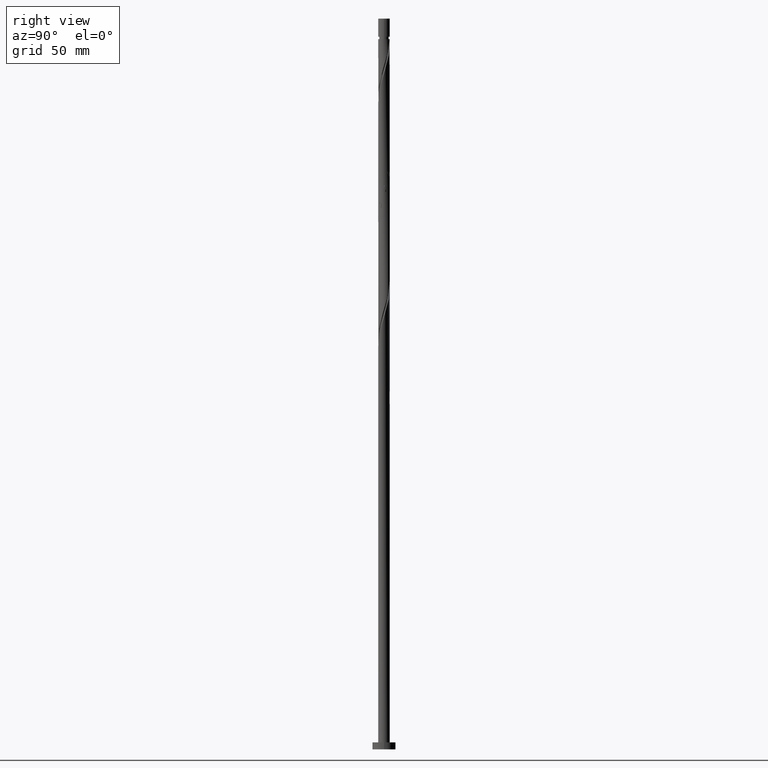
[diagram: clean part render]
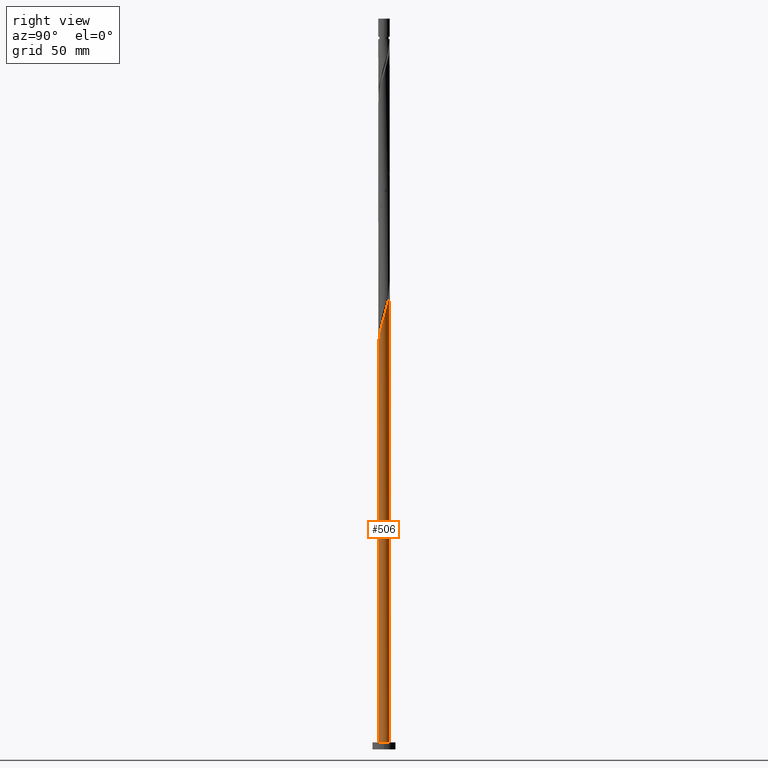
[diagram: same view with one face highlighted and labeled with its STEP entity id]
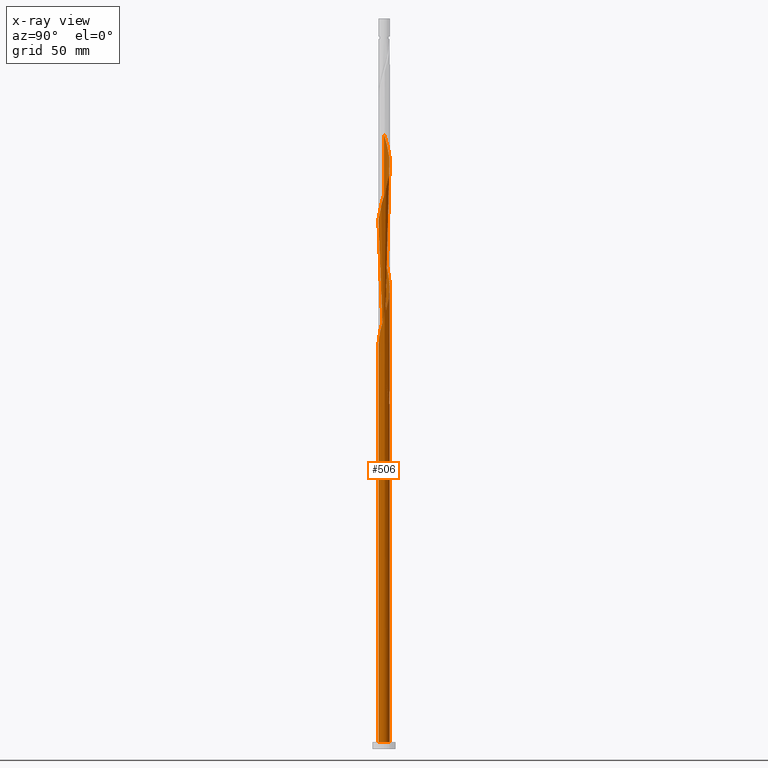
[diagram: x-ray of the same camera — body ghosted, the highlighted face saturated]
A machine part, right view. The second image highlights one B-rep face of the part: STEP entity #506.
The next image is the same camera in x-ray: the body ghosted, the highlighted face saturated — about 0% of this face is hidden behind the body in this view.
In plain terms, the highlighted cylindrical surface (bore or boss wall) has radius 2.5 mm, axis along (-0, -0, -1).
Its self-contained STEP definition (entity closure, byte-faithful):
#4 = CARTESIAN_POINT ( 'NONE',  ( -0.4974937185533118145, 2.450000000000002842, 148.6911807717714282 ) ) ;
#9 = CARTESIAN_POINT ( 'NONE',  ( 0.4974937185533120365, -2.450000000000002842, 227.4411807717713998 ) ) ;
#16 = CARTESIAN_POINT ( 'NONE',  ( 1.735631846680260049, -1.821243267372627983, 232.1286807717714566 ) ) ;
#18 = AXIS2_PLACEMENT_3D ( 'NONE', #887, #605, #1440 ) ;
#26 = CYLINDRICAL_SURFACE ( 'NONE', #287, 2.500000000000000000 ) ;
#29 = CARTESIAN_POINT ( 'NONE',  ( 0.7735424213085847489, -2.393945920148762507, 228.3786807717714282 ) ) ;
#40 = CARTESIAN_POINT ( 'NONE',  ( -1.286851179782862342, 2.161795315762413239, 256.5036807717714282 ) ) ;
#61 = CARTESIAN_POINT ( 'NONE',  ( -2.277870617955586763, -1.030196800545723379, 163.6911807717714851 ) ) ;
#78 = CARTESIAN_POINT ( 'NONE',  ( -2.423228161154338700, 0.6147888084444761425, 158.0661807717713998 ) ) ;
#95 = CARTESIAN_POINT ( 'NONE',  ( -2.499999999999999112, 2.033636642307902766E-15, 163.4906978496774173 ) ) ;
#105 =( BOUNDED_CURVE ( )  B_SPLINE_CURVE ( 2, ( #1064, #797, #1740, #932, #237, #912, #497, #350, #198, #778, #78, #761, #788, #370, #1191 ),
 .UNSPECIFIED., .F., .T. ) 
 B_SPLINE_CURVE_WITH_KNOTS ( ( 3, 2, 2, 2, 2, 2, 2, 3 ),
 ( 0.000000000000000000, 0.008928571428571396851, 0.01785714285714290472, 0.02678571428571430157, 0.03571428571428569843, 0.04464285714285709528, 0.05357142857142860315, 0.05453034012992200724 ),
 .UNSPECIFIED. ) 
 CURVE ( )  GEOMETRIC_REPRESENTATION_ITEM ( )  RATIONAL_B_SPLINE_CURVE ( ( 0.9090909090909563561, 0.9033747362666310066, 0.9090909090909563561, 0.9033747362666310066, 0.9090909090909563561, 0.9033747362666310066, 0.9090909090909563561, 0.9033747362666310066, 0.9090909090909563561, 0.9033747362666310066, 0.9090909090909563561, 0.9033747362666310066, 0.9090909090909563561, 0.9084770030214981418, 0.9079949616362265052 ) ) 
 REPRESENTATION_ITEM ( '' )  );
#107 = CARTESIAN_POINT ( 'NONE',  ( 2.353958098689213685, -0.8878210494104759043, 183.3786807717714282 ) ) ;
#119 = CARTESIAN_POINT ( 'NONE',  ( -0.7735424213085849710, 2.393945920148762507, 202.1286807717715135 ) ) ;
#126 = CARTESIAN_POINT ( 'NONE',  ( -1.286851179782862342, 2.161795315762413239, 204.0036807717714851 ) ) ;
#134 = CARTESIAN_POINT ( 'NONE',  ( -1.605304872039906572, -1.916506266048967788, 219.9411807717713998 ) ) ;
#144 = CARTESIAN_POINT ( 'NONE',  ( -0.06015577584021847279, -2.499276151735354112, 225.5661807717713998 ) ) ;
#150 = CARTESIAN_POINT ( 'NONE',  ( 2.225669392053443829, -1.138593763058830532, 234.9411807717714282 ) ) ;
#155 = CARTESIAN_POINT ( 'NONE',  ( 1.605304872039906572, 1.916506266048967344, 246.1911807717713430 ) ) ;
#174 = DIRECTION ( 'NONE',  ( -0.000000000000000000, -0.000000000000000000, -1.000000000000000000 ) ) ;
#185 = CARTESIAN_POINT ( 'NONE',  ( 2.450000000000002842, 0.4974937185533119255, 240.5661807717713998 ) ) ;
#198 = CARTESIAN_POINT ( 'NONE',  ( -2.225669392053443829, 1.138593763058830310, 156.1911807717714282 ) ) ;
#213 = CARTESIAN_POINT ( 'NONE',  ( -0.3417565674784757701, 2.492498223619459718, 151.5036807717714282 ) ) ;
#222 = CARTESIAN_POINT ( 'NONE',  ( -0.6147888084444745882, 2.423228161154335147, 152.4411807717713998 ) ) ;
#235 =( BOUNDED_CURVE ( )  B_SPLINE_CURVE ( 2, ( #922, #1476, #1341, #1759, #61, #1173, #489, #670, #969, #392, #703, #253, #1508, #1635, #1081, #1655, #812, #1218, #272, #1089, #1231, #1663, #956, #939, #1498, #107, #690, #1803, #278, #402, #562, #1668, #412, #1787, #536, #243, #1517, #264, #524, #1526, #555, #1098, #1392, #821, #1256, #119, #1377, #126, #1647, #698, #1105, #683, #422, #1240, #963, #948, #1368, #804, #1796, #546, #835, #829, #1385, #1073, #134, #1249, #1358, #428, #1775, #1531, #144, #1400, #9, #29, #592, #1714, #1260, #16, #737, #1138, #150, #851, #978, #447, #289, #1439, #185, #582, #470, #1567, #1128, #1417, #155, #1112, #1692, #297, #748, #573, #995, #1119, #458, #709, #1683, #40, #1290, #1703, #441, #1006, #1556, #316, #1020, #604, #714, #1266, #1676 ),
 .UNSPECIFIED., .F., .T. ) 
 B_SPLINE_CURVE_WITH_KNOTS ( ( 3, 2, 2, 2, 2, 2, 2, 2, 2, 2, 2, 2, 2, 2, 2, 2, 2, 2, 2, 2, 2, 2, 2, 2, 2, 2, 2, 2, 2, 2, 2, 2, 2, 2, 2, 2, 2, 2, 2, 2, 2, 2, 2, 2, 2, 2, 2, 2, 2, 2, 2, 2, 2, 2, 2, 2, 2, 3 ),
 ( 0.05453034012992200724, 0.06250000000000000000, 0.07142857142857139685, 0.08035714285714290472, 0.08928571428571430157, 0.09821428571428569843, 0.1071428571428570953, 0.1160714285714286031, 0.1250000000000000000, 0.1339285714285713969, 0.1428571428571429047, 0.1517857142857143016, 0.1607142857142856984, 0.1696428571428570953, 0.1785714285714286031, 0.1875000000000000000, 0.1964285714285713969, 0.2053571428571429047, 0.2142857142857143016, 0.2232142857142856984, 0.2321428571428570953, 0.2410714285714286031, 0.2500000000000000000, 0.2589285714285713969, 0.2678571428571429047, 0.2767857142857143016, 0.2857142857142856984, 0.2946428571428570953, 0.3035714285714286031, 0.3125000000000000000, 0.3214285714285713969, 0.3303571428571429047, 0.3392857142857143016, 0.3482142857142856984, 0.3571428571428570953, 0.3660714285714286031, 0.3750000000000000000, 0.3839285714285713969, 0.3928571428571429047, 0.4017857142857143016, 0.4107142857142856984, 0.4196428571428570953, 0.4285714285714286031, 0.4375000000000000000, 0.4464285714285713969, 0.4553571428571429047, 0.4642857142857143016, 0.4732142857142856984, 0.4821428571428570953, 0.4910714285714286031, 0.5000000000000000000, 0.5089285714285713969, 0.5178571428571427937, 0.5267857142857143016, 0.5357142857142856984, 0.5446428571428572063, 0.5535714285714286031, 0.5545303401299219725 ),
 .UNSPECIFIED. ) 
 CURVE ( )  GEOMETRIC_REPRESENTATION_ITEM ( )  RATIONAL_B_SPLINE_CURVE ( ( 0.9079949616362265052, 0.9039886423360892209, 0.9090909090909563561, 0.9033747362666310066, 0.9090909090909563561, 0.9033747362666310066, 0.9090909090909563561, 0.9033747362666310066, 0.9090909090909563561, 0.9033747362666310066, 0.9090909090909563561, 0.9033747362666310066, 0.9090909090909563561, 0.9033747362666310066, 0.9090909090909563561, 0.9033747362666310066, 0.9090909090909563561, 0.9033747362666310066, 0.9090909090909563561, 0.9033747362666310066, 0.9090909090909563561, 0.9033747362666310066, 0.9090909090909563561, 0.9033747362666310066, 0.9090909090909563561, 0.9033747362666310066, 0.9090909090909563561, 0.9033747362666310066, 0.9090909090909563561, 0.9033747362666310066, 0.9090909090909563561, 0.9033747362666310066, 0.9090909090909563561, 0.9033747362666310066, 0.9090909090909563561, 0.9033747362666310066, 0.9090909090909563561, 0.9033747362666310066, 0.9090909090909563561, 0.9033747362666310066, 0.9090909090909563561, 0.9033747362666310066, 0.9090909090909563561, 0.9033747362666310066, 0.9090909090909563561, 0.9033747362666310066, 0.9090909090909563561, 0.9033747362666310066, 0.9090909090909563561, 0.9033747362666310066, 0.9090909090909563561, 0.9033747362666310066, 0.9090909090909563561, 0.9033747362666310066, 0.9090909090909563561, 0.9033747362666310066, 0.9090909090909563561, 0.9033747362666310066, 0.9090909090909563561, 0.9033747362666310066, 0.9090909090909563561, 0.9033747362666310066, 0.9090909090909563561, 0.9033747362666310066, 0.9090909090909563561, 0.9033747362666310066, 0.9090909090909563561, 0.9033747362666310066, 0.9090909090909563561, 0.9033747362666310066, 0.9090909090909563561, 0.9033747362666310066, 0.9090909090909563561, 0.9033747362666310066, 0.9090909090909563561, 0.9033747362666310066, 0.9090909090909563561, 0.9033747362666310066, 0.9090909090909563561, 0.9033747362666310066, 0.9090909090909563561, 0.9033747362666310066, 0.9090909090909563561, 0.9033747362666310066, 0.9090909090909563561, 0.9033747362666310066, 0.9090909090909563561, 0.9033747362666310066, 0.9090909090909563561, 0.9033747362666310066, 0.9090909090909563561, 0.9033747362666310066, 0.9090909090909563561, 0.9033747362666310066, 0.9090909090909563561, 0.9033747362666310066, 0.9090909090909563561, 0.9033747362666310066, 0.9090909090909563561, 0.9033747362666310066, 0.9090909090909563561, 0.9033747362666310066, 0.9090909090909563561, 0.9033747362666310066, 0.9090909090909563561, 0.9033747362666310066, 0.9090909090909563561, 0.9033747362666310066, 0.9090909090909563561, 0.9033747362666310066, 0.9090909090909563561, 0.9033747362666310066, 0.9090909090909563561, 0.9084770030214982528, 0.9079949616362266163 ) ) 
 REPRESENTATION_ITEM ( '' )  );
#237 = CARTESIAN_POINT ( 'NONE',  ( -1.511241513231561306, 1.991519291567519945, 152.4411807717713714 ) ) ;
#243 = CARTESIAN_POINT ( 'NONE',  ( 1.821243267372627983, 1.735631846680260049, 192.7536807717713998 ) ) ;
#245 = ORIENTED_EDGE ( 'NONE', *, *, #1490, .T. ) ;
#253 = CARTESIAN_POINT ( 'NONE',  ( -0.8878210494104759043, -2.353958098689213685, 170.2536807717714282 ) ) ;
#264 = CARTESIAN_POINT ( 'NONE',  ( 1.389366476707185161, 2.097380685417676638, 194.6286807717714566 ) ) ;
#272 = CARTESIAN_POINT ( 'NONE',  ( 1.030196800545723379, -2.277870617955587207, 176.8161807717714282 ) ) ;
#278 = CARTESIAN_POINT ( 'NONE',  ( 2.499276151735354112, -0.06015577584021870178, 186.1911807717714566 ) ) ;
#287 = AXIS2_PLACEMENT_3D ( 'NONE', #1577, #174, #1445 ) ;
#289 = CARTESIAN_POINT ( 'NONE',  ( 2.499276151735354112, -0.06015577584021870178, 238.6911807717714566 ) ) ;
#290 = ORIENTED_EDGE ( 'NONE', *, *, #419, .T. ) ;
#297 = CARTESIAN_POINT ( 'NONE',  ( 0.8878210494104763484, 2.353958098689213685, 249.0036807717714282 ) ) ;
#303 = CARTESIAN_POINT ( 'NONE',  ( 0.000000000000000000, 0.000000000000000000, 148.6911807717714566 ) ) ;
#316 = CARTESIAN_POINT ( 'NONE',  ( -2.353958098689213685, 0.8878210494104759043, 262.1286807717714282 ) ) ;
#350 = CARTESIAN_POINT ( 'NONE',  ( -2.097380685417676638, 1.389366476707184717, 155.2536807717714282 ) ) ;
#353 = AXIS2_PLACEMENT_3D ( 'NONE', #303, #1562, #746 ) ;
#358 = CARTESIAN_POINT ( 'NONE',  ( 2.500000000000000000, 0.000000000000000000, 3.000000000000000000 ) ) ;
#370 = CARTESIAN_POINT ( 'NONE',  ( -2.500000000000003997, 0.03008224291597718855, 160.0413010056403209 ) ) ;
#388 = CIRCLE ( 'NONE', #636, 2.500000000000000000 ) ;
#392 = CARTESIAN_POINT ( 'NONE',  ( -1.389366476707184717, -2.097380685417676638, 168.3786807717714282 ) ) ;
#399 = CARTESIAN_POINT ( 'NONE',  ( -1.605304872039902353, 1.916506266048965346, 156.1911807717713430 ) ) ;
#402 = CARTESIAN_POINT ( 'NONE',  ( 2.506054079851243621, 0.2214450157980396017, 187.1286807717714851 ) ) ;
#412 = CARTESIAN_POINT ( 'NONE',  ( 2.277870617955587207, 1.030196800545723157, 189.9411807717713714 ) ) ;
#419 = EDGE_CURVE ( 'NONE', #853, #1100, #1684, .T. ) ;
#422 = CARTESIAN_POINT ( 'NONE',  ( -2.225669392053443829, 1.138593763058830310, 208.6911807717713714 ) ) ;
#428 = CARTESIAN_POINT ( 'NONE',  ( -0.8878210494104759043, -2.353958098689213685, 222.7536807717714282 ) ) ;
#441 = CARTESIAN_POINT ( 'NONE',  ( -1.916506266048967788, 1.605304872039906128, 259.3161807717713714 ) ) ;
#447 = CARTESIAN_POINT ( 'NONE',  ( 2.492498223619464159, -0.3417565674784771579, 237.7536807717714851 ) ) ;
#458 = CARTESIAN_POINT ( 'NONE',  ( -0.4974937185533117034, 2.450000000000002842, 253.6911807717713714 ) ) ;
#470 = CARTESIAN_POINT ( 'NONE',  ( 2.277870617955587207, 1.030196800545723157, 242.4411807717714282 ) ) ;
#489 = CARTESIAN_POINT ( 'NONE',  ( -1.991519291567519945, -1.511241513231561306, 165.5661807717713998 ) ) ;
#497 = CARTESIAN_POINT ( 'NONE',  ( -1.916506266048967788, 1.605304872039906128, 154.3161807717714282 ) ) ;
#504 = CARTESIAN_POINT ( 'NONE',  ( -2.500000000000000000, 0.000000000000000000, 315.0000000000000000 ) ) ;
#506 = ADVANCED_FACE ( 'NONE', ( #1178 ), #26, .T. ) ;
#521 = CARTESIAN_POINT ( 'NONE',  ( -0.06015577584021779278, 2.499276151735349671, 150.5661807717714566 ) ) ;
#524 = CARTESIAN_POINT ( 'NONE',  ( 1.138593763058830532, 2.225669392053443829, 195.5661807717713714 ) ) ;
#536 = CARTESIAN_POINT ( 'NONE',  ( 1.991519291567520389, 1.511241513231561084, 191.8161807717713998 ) ) ;
#537 = ORIENTED_EDGE ( 'NONE', *, *, #862, .F. ) ;
#546 = CARTESIAN_POINT ( 'NONE',  ( -2.393945920148762507, -0.7735424213085849710, 215.2536807717713998 ) ) ;
#555 = CARTESIAN_POINT ( 'NONE',  ( 0.6147888084444764756, 2.423228161154338700, 197.4411807717714566 ) ) ;
#562 = CARTESIAN_POINT ( 'NONE',  ( 2.450000000000002842, 0.4974937185533119255, 188.0661807717714282 ) ) ;
#573 = CARTESIAN_POINT ( 'NONE',  ( 0.3417565674784771579, 2.492498223619464159, 250.8786807717714566 ) ) ;
#581 = VECTOR ( 'NONE', #873, 1000.000000000000000 ) ;
#582 = CARTESIAN_POINT ( 'NONE',  ( 2.393945920148762507, 0.7735424213085845269, 241.5036807717713998 ) ) ;
#590 = LINE ( 'NONE', #1147, #581 ) ;
#592 = CARTESIAN_POINT ( 'NONE',  ( 1.030196800545723379, -2.277870617955587207, 229.3161807717714282 ) ) ;
#604 = CARTESIAN_POINT ( 'NONE',  ( -2.492498223619465048, 0.3417565674784767693, 264.0036807717714282 ) ) ;
#605 = DIRECTION ( 'NONE',  ( 0.000000000000000000, 0.000000000000000000, 1.000000000000000000 ) ) ;
#636 = AXIS2_PLACEMENT_3D ( 'NONE', #875, #1540, #1429 ) ;
#659 = CARTESIAN_POINT ( 'NONE',  ( -1.138593763058827424, 2.225669392053440721, 154.3161807717714566 ) ) ;
#662 = CARTESIAN_POINT ( 'NONE',  ( 0.4974937185533126471, 2.449999999999998401, 148.6911807717714282 ) ) ;
#670 = CARTESIAN_POINT ( 'NONE',  ( -1.821243267372627983, -1.735631846680260049, 166.5036807717714566 ) ) ;
#683 = CARTESIAN_POINT ( 'NONE',  ( -2.097380685417676638, 1.389366476707184717, 207.7536807717714282 ) ) ;
#690 = CARTESIAN_POINT ( 'NONE',  ( 2.423228161154338700, -0.6147888084444764756, 184.3161807717713998 ) ) ;
#698 = CARTESIAN_POINT ( 'NONE',  ( -1.735631846680260715, 1.821243267372627983, 205.8786807717714282 ) ) ;
#703 = CARTESIAN_POINT ( 'NONE',  ( -1.138593763058830532, -2.225669392053443385, 169.3161807717713998 ) ) ;
#709 = CARTESIAN_POINT ( 'NONE',  ( -0.7735424213085849710, 2.393945920148762507, 254.6286807717714851 ) ) ;
#714 = CARTESIAN_POINT ( 'NONE',  ( -2.499276151735354112, 0.06015577584021838259, 264.9411807717713714 ) ) ;
#715 = EDGE_LOOP ( 'NONE', ( #537, #1379, #245, #1114, #290, #1122, #958, #1509, #1402 ) ) ;
#737 = CARTESIAN_POINT ( 'NONE',  ( 1.916506266048967344, -1.605304872039906572, 233.0661807717714566 ) ) ;
#746 = DIRECTION ( 'NONE',  ( -1.000000000000000000, 0.000000000000000000, 0.000000000000000000 ) ) ;
#748 = CARTESIAN_POINT ( 'NONE',  ( 0.6147888084444764756, 2.423228161154338700, 249.9411807717713998 ) ) ;
#761 = CARTESIAN_POINT ( 'NONE',  ( -2.492498223619465048, 0.3417565674784767693, 159.0036807717714851 ) ) ;
#776 = CARTESIAN_POINT ( 'NONE',  ( -2.449999999999998401, 0.4974937185533121475, 161.8161807717713714 ) ) ;
#778 = CARTESIAN_POINT ( 'NONE',  ( -2.353958098689213685, 0.8878210494104759043, 157.1286807717714282 ) ) ;
#788 = CARTESIAN_POINT ( 'NONE',  ( -2.499276151735354112, 0.06015577584021838259, 159.9411807717713998 ) ) ;
#797 = CARTESIAN_POINT ( 'NONE',  ( -0.7735424213085849710, 2.393945920148762507, 149.6286807717714282 ) ) ;
#804 = CARTESIAN_POINT ( 'NONE',  ( -2.506054079851243621, -0.2214450157980399347, 213.3786807717714851 ) ) ;
#812 = CARTESIAN_POINT ( 'NONE',  ( 0.4974937185533120365, -2.450000000000002842, 174.9411807717714282 ) ) ;
#821 = CARTESIAN_POINT ( 'NONE',  ( -0.2214450157980394907, 2.506054079851243621, 200.2536807717714282 ) ) ;
#824 = EDGE_CURVE ( 'NONE', #1410, #1638, #1610, .T. ) ;
#829 = CARTESIAN_POINT ( 'NONE',  ( -2.161795315762413239, -1.286851179782862342, 217.1286807717714566 ) ) ;
#835 = CARTESIAN_POINT ( 'NONE',  ( -2.277870617955586763, -1.030196800545723379, 216.1911807717713998 ) ) ;
#851 = CARTESIAN_POINT ( 'NONE',  ( 2.353958098689213685, -0.8878210494104759043, 235.8786807717714282 ) ) ;
#853 = VERTEX_POINT ( 'NONE', #358 ) ;
#862 = EDGE_CURVE ( 'NONE', #1281, #1410, #1228, .T. ) ;
#873 = DIRECTION ( 'NONE',  ( -0.000000000000000000, -0.000000000000000000, -1.000000000000000000 ) ) ;
#875 = CARTESIAN_POINT ( 'NONE',  ( 0.000000000000000000, 0.000000000000000000, 3.000000000000000000 ) ) ;
#887 = CARTESIAN_POINT ( 'NONE',  ( 0.000000000000000000, 0.000000000000000000, 3.000000000000000000 ) ) ;
#912 = CARTESIAN_POINT ( 'NONE',  ( -1.735631846680260715, 1.821243267372627983, 153.3786807717714566 ) ) ;
#922 = CARTESIAN_POINT ( 'NONE',  ( -2.500000000000003553, -1.403022711023423344E-15, 160.1416636938653539 ) ) ;
#932 = CARTESIAN_POINT ( 'NONE',  ( -1.286851179782862342, 2.161795315762413239, 151.5036807717715135 ) ) ;
#939 = CARTESIAN_POINT ( 'NONE',  ( 2.097380685417676638, -1.389366476707184939, 181.5036807717714566 ) ) ;
#948 = CARTESIAN_POINT ( 'NONE',  ( -2.492498223619465048, 0.3417565674784767693, 211.5036807717714566 ) ) ;
#956 = CARTESIAN_POINT ( 'NONE',  ( 1.916506266048967344, -1.605304872039906572, 180.5661807717714282 ) ) ;
#958 = ORIENTED_EDGE ( 'NONE', *, *, #1626, .F. ) ;
#963 = CARTESIAN_POINT ( 'NONE',  ( -2.423228161154338700, 0.6147888084444761425, 210.5661807717713998 ) ) ;
#967 = CARTESIAN_POINT ( 'NONE',  ( -2.500000000000000000, 0.000000000000000000, 3.000000000000000000 ) ) ;
#969 = CARTESIAN_POINT ( 'NONE',  ( -1.605304872039906572, -1.916506266048967788, 167.4411807717714566 ) ) ;
#978 = CARTESIAN_POINT ( 'NONE',  ( 2.423228161154338700, -0.6147888084444764756, 236.8161807717713998 ) ) ;
#995 = CARTESIAN_POINT ( 'NONE',  ( 0.06015577584021897933, 2.499276151735353668, 251.8161807717714282 ) ) ;
#1006 = CARTESIAN_POINT ( 'NONE',  ( -2.097380685417676638, 1.389366476707184717, 260.2536807717714282 ) ) ;
#1020 = CARTESIAN_POINT ( 'NONE',  ( -2.423228161154338700, 0.6147888084444761425, 263.0661807717714282 ) ) ;
#1064 = CARTESIAN_POINT ( 'NONE',  ( -0.4974937185533118700, 2.450000000000002842, 148.6911807717714282 ) ) ;
#1070 = CARTESIAN_POINT ( 'NONE',  ( 0.2214450157980401013, 2.506054079851239624, 149.6286807717714566 ) ) ;
#1073 = CARTESIAN_POINT ( 'NONE',  ( -1.821243267372627983, -1.735631846680260049, 219.0036807717714566 ) ) ;
#1081 = CARTESIAN_POINT ( 'NONE',  ( -0.06015577584021847279, -2.499276151735354112, 173.0661807717713998 ) ) ;
#1089 = CARTESIAN_POINT ( 'NONE',  ( 1.286851179782862342, -2.161795315762413239, 177.7536807717714566 ) ) ;
#1094 = CARTESIAN_POINT ( 'NONE',  ( -2.500000000000003553, -1.403022711023423344E-15, 160.1416636938653539 ) ) ;
#1098 = CARTESIAN_POINT ( 'NONE',  ( 0.3417565674784771579, 2.492498223619464159, 198.3786807717714566 ) ) ;
#1100 = VERTEX_POINT ( 'NONE', #967 ) ;
#1105 = CARTESIAN_POINT ( 'NONE',  ( -1.916506266048967788, 1.605304872039906128, 206.8161807717713998 ) ) ;
#1112 = CARTESIAN_POINT ( 'NONE',  ( 1.389366476707185161, 2.097380685417676638, 247.1286807717714566 ) ) ;
#1114 = ORIENTED_EDGE ( 'NONE', *, *, #1679, .T. ) ;
#1119 = CARTESIAN_POINT ( 'NONE',  ( -0.2214450157980394907, 2.506054079851243621, 252.7536807717714566 ) ) ;
#1122 = ORIENTED_EDGE ( 'NONE', *, *, #1490, .F. ) ;
#1124 = VECTOR ( 'NONE', #1631, 1000.000000000000000 ) ;
#1128 = CARTESIAN_POINT ( 'NONE',  ( 1.991519291567520389, 1.511241513231561084, 244.3161807717714282 ) ) ;
#1138 = CARTESIAN_POINT ( 'NONE',  ( 2.097380685417676638, -1.389366476707184939, 234.0036807717713998 ) ) ;
#1147 = CARTESIAN_POINT ( 'NONE',  ( -2.500000000000000000, 0.000000000000000000, 315.0000000000000000 ) ) ;
#1173 = CARTESIAN_POINT ( 'NONE',  ( -2.161795315762413239, -1.286851179782862342, 164.6286807717714566 ) ) ;
#1178 = FACE_OUTER_BOUND ( 'NONE', #715, .T. ) ;
#1191 = CARTESIAN_POINT ( 'NONE',  ( -2.500000000000003553, -1.403022711023423344E-15, 160.1416636938653539 ) ) ;
#1218 = CARTESIAN_POINT ( 'NONE',  ( 0.7735424213085847489, -2.393945920148762507, 175.8786807717713998 ) ) ;
#1220 = CIRCLE ( 'NONE', #353, 2.500000000000000000 ) ;
#1228 = LINE ( 'NONE', #504, #1124 ) ;
#1231 = CARTESIAN_POINT ( 'NONE',  ( 1.511241513231560862, -1.991519291567519945, 178.6911807717713998 ) ) ;
#1240 = CARTESIAN_POINT ( 'NONE',  ( -2.353958098689213685, 0.8878210494104759043, 209.6286807717714566 ) ) ;
#1249 = CARTESIAN_POINT ( 'NONE',  ( -1.389366476707184717, -2.097380685417676638, 220.8786807717714282 ) ) ;
#1256 = CARTESIAN_POINT ( 'NONE',  ( -0.4974937185533117034, 2.450000000000002842, 201.1911807717714566 ) ) ;
#1260 = CARTESIAN_POINT ( 'NONE',  ( 1.511241513231560862, -1.991519291567519945, 231.1911807717713998 ) ) ;
#1261 = VERTEX_POINT ( 'NONE', #1094 ) ;
#1266 = CARTESIAN_POINT ( 'NONE',  ( -2.500000000000003109, 0.03008224291597826408, 265.0413010056401504 ) ) ;
#1281 = VERTEX_POINT ( 'NONE', #1523 ) ;
#1290 = CARTESIAN_POINT ( 'NONE',  ( -1.511241513231561306, 1.991519291567519945, 257.4411807717714282 ) ) ;
#1341 = CARTESIAN_POINT ( 'NONE',  ( -2.450000000000002842, -0.4974937185533122586, 161.8161807717713998 ) ) ;
#1358 = CARTESIAN_POINT ( 'NONE',  ( -1.138593763058830532, -2.225669392053443385, 221.8161807717713998 ) ) ;
#1364 = CARTESIAN_POINT ( 'NONE',  ( -1.991519291567516614, 1.511241513231559308, 158.0661807717713998 ) ) ;
#1368 = CARTESIAN_POINT ( 'NONE',  ( -2.499276151735354112, 0.06015577584021838259, 212.4411807717714282 ) ) ;
#1377 = CARTESIAN_POINT ( 'NONE',  ( -1.030196800545723379, 2.277870617955586763, 203.0661807717713714 ) ) ;
#1379 = ORIENTED_EDGE ( 'NONE', *, *, #1650, .F. ) ;
#1385 = CARTESIAN_POINT ( 'NONE',  ( -1.991519291567519945, -1.511241513231561306, 218.0661807717713998 ) ) ;
#1392 = CARTESIAN_POINT ( 'NONE',  ( 0.06015577584021897933, 2.499276151735353668, 199.3161807717713998 ) ) ;
#1400 = CARTESIAN_POINT ( 'NONE',  ( 0.2214450157980397960, -2.506054079851243621, 226.5036807717714282 ) ) ;
#1402 = ORIENTED_EDGE ( 'NONE', *, *, #824, .F. ) ;
#1406 = EDGE_CURVE ( 'NONE', #1770, #1638, #1220, .T. ) ;
#1410 = VERTEX_POINT ( 'NONE', #1584 ) ;
#1417 = CARTESIAN_POINT ( 'NONE',  ( 1.821243267372627983, 1.735631846680260049, 245.2536807717715135 ) ) ;
#1429 = DIRECTION ( 'NONE',  ( 1.000000000000000000, 0.000000000000000000, 0.000000000000000000 ) ) ;
#1439 = CARTESIAN_POINT ( 'NONE',  ( 2.506054079851243621, 0.2214450157980396017, 239.6286807717714851 ) ) ;
#1440 = DIRECTION ( 'NONE',  ( 1.000000000000000000, 0.000000000000000000, 0.000000000000000000 ) ) ;
#1445 = DIRECTION ( 'NONE',  ( -1.000000000000000000, 0.000000000000000000, 0.000000000000000000 ) ) ;
#1465 = CARTESIAN_POINT ( 'NONE',  ( -2.499999999999998668, 0.2512594538148085754, 162.6524267707138165 ) ) ;
#1473 = CARTESIAN_POINT ( 'NONE',  ( -1.821243267372624430, 1.735631846680257384, 157.1286807717714566 ) ) ;
#1476 = CARTESIAN_POINT ( 'NONE',  ( -2.500000000000003997, -0.2512594538148025247, 160.9799347728289831 ) ) ;
#1490 = EDGE_CURVE ( 'NONE', #1261, #1100, #590, .T. ) ;
#1498 = CARTESIAN_POINT ( 'NONE',  ( 2.225669392053443829, -1.138593763058830532, 182.4411807717714566 ) ) ;
#1504 = CARTESIAN_POINT ( 'NONE',  ( -1.389366476707182274, 2.097380685417673529, 155.2536807717714566 ) ) ;
#1508 = CARTESIAN_POINT ( 'NONE',  ( -0.6147888084444762535, -2.423228161154338700, 171.1911807717713714 ) ) ;
#1509 = ORIENTED_EDGE ( 'NONE', *, *, #1406, .T. ) ;
#1517 = CARTESIAN_POINT ( 'NONE',  ( 1.605304872039906572, 1.916506266048967344, 193.6911807717714566 ) ) ;
#1523 = CARTESIAN_POINT ( 'NONE',  ( -2.500000000000004441, -1.037341259746041989E-15, 265.1416636938653824 ) ) ;
#1526 = CARTESIAN_POINT ( 'NONE',  ( 0.8878210494104763484, 2.353958098689213685, 196.5036807717714566 ) ) ;
#1531 = CARTESIAN_POINT ( 'NONE',  ( -0.3417565674784769914, -2.492498223619465048, 224.6286807717715419 ) ) ;
#1540 = DIRECTION ( 'NONE',  ( 0.000000000000000000, 0.000000000000000000, 1.000000000000000000 ) ) ;
#1556 = CARTESIAN_POINT ( 'NONE',  ( -2.225669392053443829, 1.138593763058830310, 261.1911807717713714 ) ) ;
#1562 = DIRECTION ( 'NONE',  ( 0.000000000000000000, -0.000000000000000000, -1.000000000000000000 ) ) ;
#1567 = CARTESIAN_POINT ( 'NONE',  ( 2.161795315762413239, 1.286851179782861898, 243.3786807717713998 ) ) ;
#1577 = CARTESIAN_POINT ( 'NONE',  ( 0.000000000000000000, 0.000000000000000000, 315.0000000000000000 ) ) ;
#1584 = CARTESIAN_POINT ( 'NONE',  ( -2.499999999999999112, 2.033636642307902766E-15, 163.4906978496774457 ) ) ;
#1604 = CARTESIAN_POINT ( 'NONE',  ( 0.4974937185533126471, 2.449999999999998401, 148.6911807717714566 ) ) ;
#1610 =( BOUNDED_CURVE ( )  B_SPLINE_CURVE ( 2, ( #95, #1465, #776, #1747, #1764, #1642, #1364, #1473, #399, #1504, #659, #1622, #222, #213, #521, #1070, #1604 ),
 .UNSPECIFIED., .F., .T. ) 
 B_SPLINE_CURVE_WITH_KNOTS ( ( 3, 2, 2, 2, 2, 2, 2, 2, 3 ),
 ( 0.9295303401299221946, 0.9375000000000000000, 0.9464285714285713969, 0.9553571428571429047, 0.9642857142857143016, 0.9732142857142856984, 0.9821428571428570953, 0.9910714285714286031, 1.000000000000000000 ),
 .UNSPECIFIED. ) 
 CURVE ( )  GEOMETRIC_REPRESENTATION_ITEM ( )  RATIONAL_B_SPLINE_CURVE ( ( 0.9079949616362196219, 0.9039886423360828926, 0.9090909090909496948, 0.9033747362666244562, 0.9090909090909496948, 0.9033747362666244562, 0.9090909090909496948, 0.9033747362666244562, 0.9090909090909496948, 0.9033747362666244562, 0.9090909090909496948, 0.9033747362666244562, 0.9090909090909496948, 0.9033747362666244562, 0.9090909090909496948, 0.9033747362666244562, 0.9090909090909496948 ) ) 
 REPRESENTATION_ITEM ( '' )  );
#1622 = CARTESIAN_POINT ( 'NONE',  ( -0.8878210494104737949, 2.353958098689209688, 153.3786807717714282 ) ) ;
#1626 = EDGE_CURVE ( 'NONE', #1770, #1261, #105, .T. ) ;
#1631 = DIRECTION ( 'NONE',  ( -0.000000000000000000, -0.000000000000000000, -1.000000000000000000 ) ) ;
#1635 = CARTESIAN_POINT ( 'NONE',  ( -0.3417565674784769914, -2.492498223619465048, 172.1286807717713998 ) ) ;
#1638 = VERTEX_POINT ( 'NONE', #662 ) ;
#1642 = CARTESIAN_POINT ( 'NONE',  ( -2.161795315762409686, 1.286851179782861010, 159.0036807717714282 ) ) ;
#1647 = CARTESIAN_POINT ( 'NONE',  ( -1.511241513231561306, 1.991519291567519945, 204.9411807717714282 ) ) ;
#1650 = EDGE_CURVE ( 'NONE', #1261, #1281, #235, .T. ) ;
#1655 = CARTESIAN_POINT ( 'NONE',  ( 0.2214450157980397960, -2.506054079851243621, 174.0036807717714851 ) ) ;
#1663 = CARTESIAN_POINT ( 'NONE',  ( 1.735631846680260049, -1.821243267372627983, 179.6286807717714282 ) ) ;
#1668 = CARTESIAN_POINT ( 'NONE',  ( 2.393945920148762507, 0.7735424213085845269, 189.0036807717714566 ) ) ;
#1676 = CARTESIAN_POINT ( 'NONE',  ( -2.500000000000004441, -1.037341259746041989E-15, 265.1416636938653824 ) ) ;
#1679 = EDGE_CURVE ( 'NONE', #1100, #853, #388, .T. ) ;
#1683 = CARTESIAN_POINT ( 'NONE',  ( -1.030196800545723379, 2.277870617955586763, 255.5661807717713998 ) ) ;
#1684 = CIRCLE ( 'NONE', #18, 2.500000000000000000 ) ;
#1692 = CARTESIAN_POINT ( 'NONE',  ( 1.138593763058830532, 2.225669392053443829, 248.0661807717714566 ) ) ;
#1703 = CARTESIAN_POINT ( 'NONE',  ( -1.735631846680260715, 1.821243267372627983, 258.3786807717714282 ) ) ;
#1714 = CARTESIAN_POINT ( 'NONE',  ( 1.286851179782862342, -2.161795315762413239, 230.2536807717714851 ) ) ;
#1740 = CARTESIAN_POINT ( 'NONE',  ( -1.030196800545723379, 2.277870617955586763, 150.5661807717714282 ) ) ;
#1747 = CARTESIAN_POINT ( 'NONE',  ( -2.393945920148758510, 0.7735424213085841938, 160.8786807717714851 ) ) ;
#1759 = CARTESIAN_POINT ( 'NONE',  ( -2.393945920148762507, -0.7735424213085849710, 162.7536807717713998 ) ) ;
#1764 = CARTESIAN_POINT ( 'NONE',  ( -2.277870617955584098, 1.030196800545722269, 159.9411807717714282 ) ) ;
#1770 = VERTEX_POINT ( 'NONE', #4 ) ;
#1775 = CARTESIAN_POINT ( 'NONE',  ( -0.6147888084444762535, -2.423228161154338700, 223.6911807717714282 ) ) ;
#1787 = CARTESIAN_POINT ( 'NONE',  ( 2.161795315762413239, 1.286851179782861898, 190.8786807717714566 ) ) ;
#1796 = CARTESIAN_POINT ( 'NONE',  ( -2.450000000000002842, -0.4974937185533122586, 214.3161807717714851 ) ) ;
#1803 = CARTESIAN_POINT ( 'NONE',  ( 2.492498223619464159, -0.3417565674784771579, 185.2536807717714566 ) ) ;